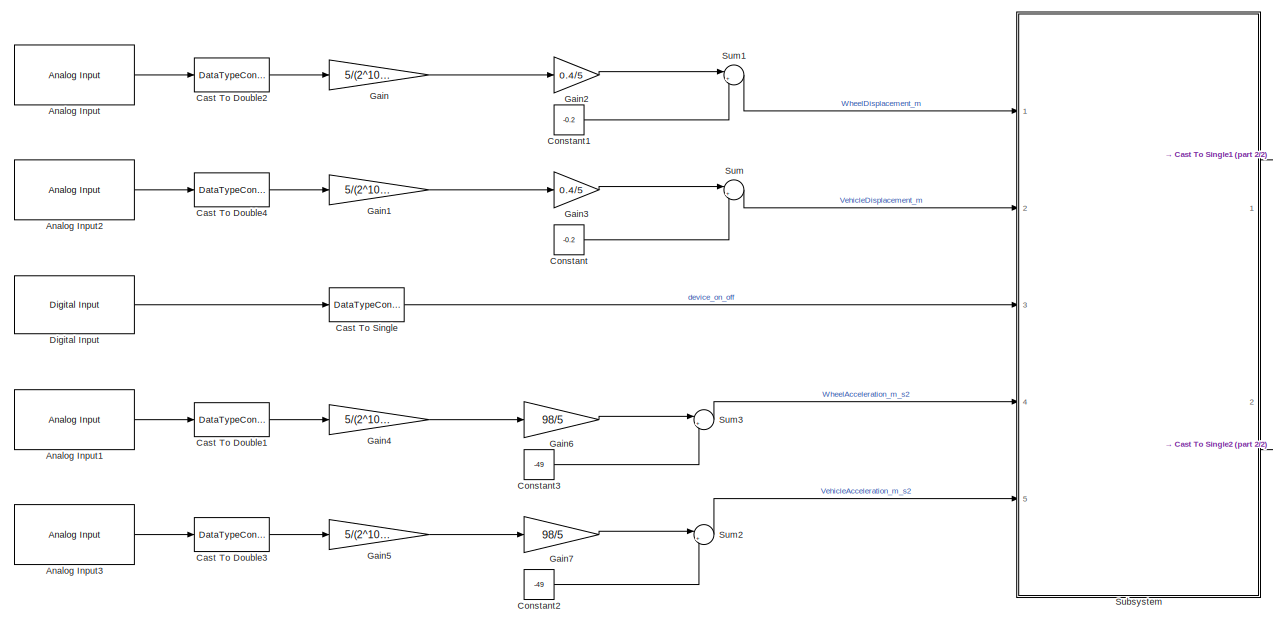
[diagram: root canvas - part 1/2, most of the canvas]
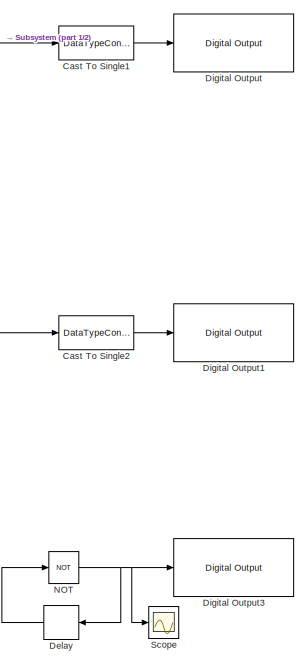
[diagram: root canvas - part 2/2, right side, full height]
MODEL slx_8d690a46111a
KIND model
CONFIG AbsTol = auto
CONFIG EnableMultiTasking = off
CONFIG FixedStep = 1/100
CONFIG MaxStep = auto
CONFIG MinStep = auto
CONFIG RelTol = 1e-3
CONFIG SampleTimeConstraint = Unconstrained
CONFIG SolverName = FixedStepAuto
CONFIG StartTime = 0.0
CONFIG StopTime = inf
BLOCK [Reference] Analog Input  REF=arduinolib/Analog Input
  Ports = [0, 1]
  SourceBlock = arduinolib/Analog Input
  SourceProductBaseCode = ARDUINO
  SourceType = Arduino Analog Input
BLOCK [Reference] Analog Input1  REF=arduinolib/Analog Input
  Ports = [0, 1]
  SourceBlock = arduinolib/Analog Input
  SourceProductBaseCode = ARDUINO
  SourceType = Arduino Analog Input
BLOCK [Reference] Analog Input2  REF=arduinolib/Analog Input
  Ports = [0, 1]
  SourceBlock = arduinolib/Analog Input
  SourceProductBaseCode = ARDUINO
  SourceType = Arduino Analog Input
BLOCK [Reference] Analog Input3  REF=arduinolib/Analog Input
  Ports = [0, 1]
  SourceBlock = arduinolib/Analog Input
  SourceProductBaseCode = ARDUINO
  SourceType = Arduino Analog Input
BLOCK [DataTypeConversion] Cast To Double1
  OutDataTypeStr = double
  RndMeth = Floor
  SaturateOnIntegerOverflow = off
BLOCK [DataTypeConversion] Cast To Double2
  OutDataTypeStr = double
  RndMeth = Floor
  SaturateOnIntegerOverflow = off
BLOCK [DataTypeConversion] Cast To Double3
  OutDataTypeStr = double
  RndMeth = Floor
  SaturateOnIntegerOverflow = off
BLOCK [DataTypeConversion] Cast To Double4
  OutDataTypeStr = double
  RndMeth = Floor
  SaturateOnIntegerOverflow = off
BLOCK [DataTypeConversion] Cast To Single
  OutDataTypeStr = int8
  RndMeth = Floor
  SaturateOnIntegerOverflow = off
BLOCK [DataTypeConversion] Cast To Single1
  OutDataTypeStr = boolean
  RndMeth = Floor
  SaturateOnIntegerOverflow = off
BLOCK [DataTypeConversion] Cast To Single2
  OutDataTypeStr = boolean
  RndMeth = Floor
  SaturateOnIntegerOverflow = off
BLOCK [Constant] Constant
  Value = -0.2
BLOCK [Constant] Constant1
  Value = -0.2
BLOCK [Constant] Constant2
  Value = -49
BLOCK [Constant] Constant3
  Value = -49
BLOCK [Delay] Delay
  DelayLength = 1
  InputPortMap = u0
  NameLocation = top
  Ports = [1, 1]
  SampleTime = 0.5
BLOCK [Reference] Digital Input  REF=arduinolib/Digital Input
  Ports = [0, 1]
  SourceBlock = arduinolib/Digital Input
  SourceProductBaseCode = ARDUINO
  SourceType = Arduino Digital Input
BLOCK [Reference] Digital Output  REF=arduinolib/Digital Output
  Ports = [1]
  SourceBlock = arduinolib/Digital Output
  SourceProductBaseCode = ARDUINO
  SourceType = Arduino Digital Output
BLOCK [Reference] Digital Output1  REF=arduinolib/Digital Output
  Ports = [1]
  SourceBlock = arduinolib/Digital Output
  SourceProductBaseCode = ARDUINO
  SourceType = Arduino Digital Output
BLOCK [Reference] Digital Output3  REF=arduinolib/Digital Output
  Ports = [1]
  SourceBlock = arduinolib/Digital Output
  SourceProductBaseCode = ARDUINO
  SourceType = Arduino Digital Output
BLOCK [Gain] Gain
  Gain = 5/(2^10-1)
BLOCK [Gain] Gain1
  Gain = 5/(2^10-1)
BLOCK [Gain] Gain2
  Gain = 0.4/5
BLOCK [Gain] Gain3
  Gain = 0.4/5
BLOCK [Gain] Gain4
  Gain = 5/(2^10-1)
BLOCK [Gain] Gain5
  Gain = 5/(2^10-1)
BLOCK [Gain] Gain6
  Gain = 98/5
BLOCK [Gain] Gain7
  Gain = 98/5
BLOCK [Logic] NOT
  AllPortsSameDT = off
  IconShape = distinctive
  Operator = NOT
  OutDataTypeStr = boolean
  Ports = [1, 1]
BLOCK [Scope] Scope
  Floating = off
  NumInputPorts = 1
  Ports = [1]
  ScopeSpecificationString = Simulink.scopes.TimeScopeBlockCfg('CurrentConfiguration', extmgr.ConfigurationSet(extmgr.Configuration('Core','General UI',true),extmgr.Configuration('Core','Source UI',true),extmgr.Configuration('Sources','WiredSimulink',true),extmgr.Configuration('Visuals','Time Domain',true,'SerializedDisplays',{struct('MinYLimReal','-0.125','MaxYLimReal','1.125','YLabelReal','','MinYLimMag','0.00000','MaxYLimM...<+1311ch>
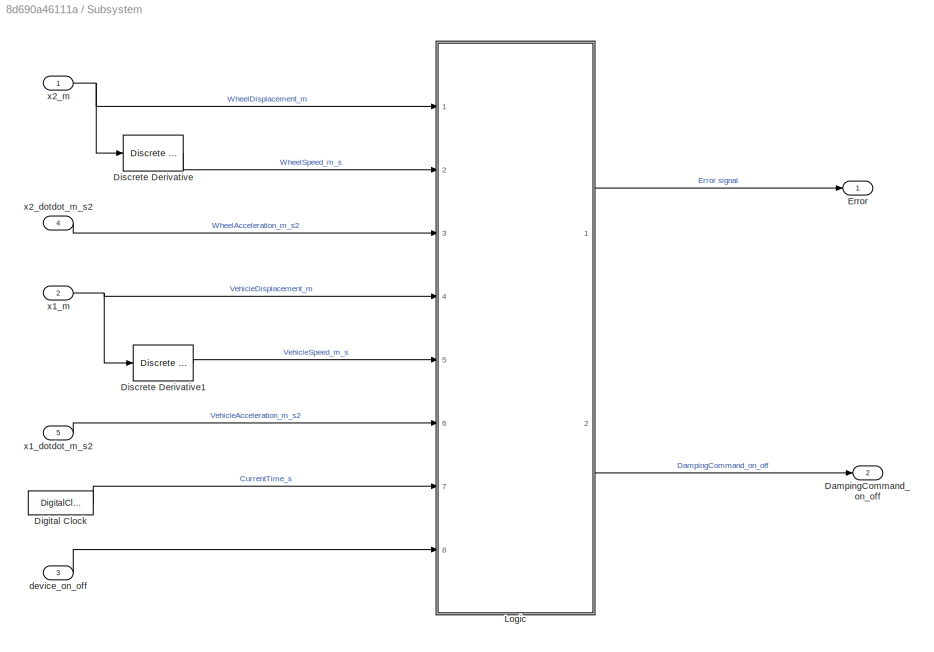
BLOCK [SubSystem] Subsystem
  Ports = [5, 2]
  RequestExecContextInheritance = off
BLOCK [Outport] Subsystem/DampingCommand_on_off
  OutDataTypeStr = int8
  Port = 2
BLOCK [DigitalClock] Subsystem/Digital Clock
  SampleTime = 1/100
BLOCK [Reference] Subsystem/Discrete Derivative  REF=simulink/Discrete/Discrete Derivative
  Ports = [1, 1]
  SourceBlock = simulink/Discrete/Discrete Derivative
  SourceProductBaseCode = SL
  SourceType = Discrete Derivative
BLOCK [Reference] Subsystem/Discrete Derivative1  REF=simulink/Discrete/Discrete Derivative
  Ports = [1, 1]
  SourceBlock = simulink/Discrete/Discrete Derivative
  SourceProductBaseCode = SL
  SourceType = Discrete Derivative
BLOCK [Outport] Subsystem/Error
  OutDataTypeStr = double
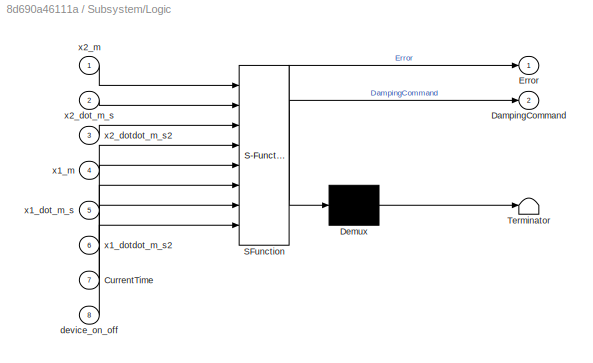
BLOCK [SubSystem] Subsystem/Logic
  ErrorFcn = Stateflow.Translate.translate
  PermitHierarchicalResolution = ExplicitOnly
  Ports = [8, 2]
  RequestExecContextInheritance = off
  SFBlockType = Chart
  TreatAsAtomicUnit = on
BLOCK [Demux] Subsystem/Logic/ Demux 
  Outputs = 1
  Ports = [1, 1]
BLOCK [S-Function] Subsystem/Logic/ SFunction 
  EnableBusSupport = on
  FunctionName = sf_sfun
  PortCounts = [8 3]
  Ports = [8, 3]
  SFcnIsStateOwnerBlock = off
  SFunctionDeploymentMode = off
  Tag = Stateflow S-Function 3
BLOCK [Terminator] Subsystem/Logic/ Terminator 
BLOCK [Inport] Subsystem/Logic/CurrentTime
  Port = 7
BLOCK [Outport] Subsystem/Logic/DampingCommand
  Port = 2
BLOCK [Outport] Subsystem/Logic/Error
BLOCK [Inport] Subsystem/Logic/device_on_off
  Port = 8
BLOCK [Inport] Subsystem/Logic/x1_dot_m_s
  Port = 5
BLOCK [Inport] Subsystem/Logic/x1_dotdot_m_s2
  Port = 6
BLOCK [Inport] Subsystem/Logic/x1_m
  Port = 4
BLOCK [Inport] Subsystem/Logic/x2_dot_m_s
  Port = 2
BLOCK [Inport] Subsystem/Logic/x2_dotdot_m_s2
  Port = 3
BLOCK [Inport] Subsystem/Logic/x2_m
BLOCK [Inport] Subsystem/device_on_off
  Port = 3
BLOCK [Inport] Subsystem/x1_dotdot_m_s2
  OutDataTypeStr = double
  Port = 5
BLOCK [Inport] Subsystem/x1_m
  Port = 2
BLOCK [Inport] Subsystem/x2_dotdot_m_s2
  OutDataTypeStr = double
  Port = 4
BLOCK [Inport] Subsystem/x2_m
  OutDataTypeStr = double
BLOCK [Sum] Sum
  Inputs = |++
  Ports = [2, 1]
BLOCK [Sum] Sum1
  Inputs = |++
  Ports = [2, 1]
BLOCK [Sum] Sum2
  Inputs = |++
  Ports = [2, 1]
BLOCK [Sum] Sum3
  Inputs = |++
  Ports = [2, 1]
LINE Analog Input1:1 -> Cast To Double1:1
LINE Analog Input2:1 -> Cast To Double4:1
LINE Analog Input3:1 -> Cast To Double3:1
LINE Analog Input:1 -> Cast To Double2:1
LINE Cast To Double1:1 -> Gain4:1
LINE Cast To Double2:1 -> Gain:1
LINE Cast To Double3:1 -> Gain5:1
LINE Cast To Double4:1 -> Gain1:1
LINE Cast To Single1:1 -> Digital Output:1
LINE Cast To Single2:1 -> Digital Output1:1
LINE Cast To Single:1 -> Subsystem:3
LINE Constant1:1 -> Sum1:2
LINE Constant2:1 -> Sum2:2
LINE Constant3:1 -> Sum3:2
LINE Constant:1 -> Sum:2
LINE Delay:1 -> NOT:1
LINE Digital Input:1 -> Cast To Single:1
LINE Gain1:1 -> Gain3:1
LINE Gain2:1 -> Sum1:1
LINE Gain3:1 -> Sum:1
LINE Gain4:1 -> Gain6:1
LINE Gain5:1 -> Gain7:1
LINE Gain6:1 -> Sum3:1
LINE Gain7:1 -> Sum2:1
LINE Gain:1 -> Gain2:1
NET NOT:1 -> Delay:1, Digital Output3:1, Scope:1
LINE Subsystem/Digital Clock:1 -> Subsystem/Logic:7
LINE Subsystem/Discrete Derivative1:1 -> Subsystem/Logic:5
LINE Subsystem/Discrete Derivative:1 -> Subsystem/Logic:2
LINE Subsystem/Logic:1 -> Subsystem/Error:1
LINE Subsystem/Logic:2 -> Subsystem/DampingCommand_on_off:1
LINE Subsystem/device_on_off:1 -> Subsystem/Logic:8
LINE Subsystem/x1_dotdot_m_s2:1 -> Subsystem/Logic:6
NET Subsystem/x1_m:1 -> Subsystem/Discrete Derivative1:1, Subsystem/Logic:4
LINE Subsystem/x2_dotdot_m_s2:1 -> Subsystem/Logic:3
NET Subsystem/x2_m:1 -> Subsystem/Discrete Derivative:1, Subsystem/Logic:1
LINE Subsystem:1 -> Cast To Single1:1
LINE Subsystem:2 -> Cast To Single2:1
LINE Sum1:1 -> Subsystem:1
LINE Sum2:1 -> Subsystem:5
LINE Sum3:1 -> Subsystem:4
LINE Sum:1 -> Subsystem:2
note: NET lines group one-source signal fan-out (src -> all destinations, sorted); 1:1 wires keep LINE
CHART Subsystem/Logic states=12 transitions=11
  STATE_LABEL 'Device'
  STATE_LABEL 'DeviceOff\nentry:\nError = 0;\nDampingCommand=0;\n'
  STATE_LABEL 'DeviceOn\nduring:\nDecisionLogic();\n'
  STATE_LABEL 'Logic'
  STATE_LABEL 'ControlLogic'
  STATE_LABEL 'HighDamping\nentry:\nDampingCommand=1;'
  STATE_LABEL 'LowDamping\nentry:\nDampingCommand=0;'
  STATE_LABEL '[DampingStatus == "HiDamping"]'
  STATE_LABEL '[DampingStatus == "LoDamping"]'
  STATE_LABEL '{send(EStop,Warning)}'
  STATE_LABEL '[CheckFaultSystem()]'
  STATE_LABEL 'Warning'
  STATE_LABEL 'Running\n'
  STATE_LABEL 'Stop\nentry:\nError=1;\nDampingCommand=1;\n'
  STATE_LABEL 'EStop'
  STATE_LABEL 'DecisionLogic'
  STATE_LABEL 'SCRIPT:\nfunction DecisionLogic\n\naVarTruthTableCondition_1 = false;\naVarTruthTableCondition_2 = false;\n\n\n% High damping required\n\naVarTruthTableCondition_1 = logical((x1_dot_m_s-x2_dot_m_s)*x1_dot_m_s>=0 && Error<1);\n\n% Low damping required\n\naVarTruthTableCondition_2 = logical((x1_dot_m_s-x2_dot_m_s)*x1_dot_m_s<0 && Error<1);\n\nif (aVarTruthTableCondition_1)\n    aFcnTruthTableAction_1();\nelseif (aVa...<+334ch>'
  STATE_LABEL 'flag = CheckFaultSystem'
  STATE_LABEL 'SCRIPT:\nfunction flag = CheckFaultSystem\npersistent tol old_x1_dotdot_m_s2 old_x1_m old_x2_m old_x2_dotdot_m_s2 timeChange Error_flag\n\nif isempty(tol)\n    tol = 1e-8;\nend\n\nif isempty(Error_flag)\n    Error_flag = 0;\nend\n\nif isempty(old_x2_dotdot_m_s2)\n    old_x2_dotdot_m_s2 = x2_dotdot_m_s2;\nend\n\nif isempty(old_x2_m)\n    old_x2_m = x2_m;\nend\n\nif isempty(old_x1_dotdot_m_s2)\n    old_x1_dotdot_m_s2 = ...<+644ch>'
  STATE_LABEL '[device_on_off==0]'
  STATE_LABEL '[device_on_off==1]'
  STATE_LABEL 'DeviceOff\nentry:\nError = 0;\nDampingCommand=0;\n'
  STATE_LABEL 'DeviceOn\nduring:\nDecisionLogic();\n'
  STATE_LABEL 'Logic'
  STATE_LABEL 'ControlLogic'
  STATE_LABEL 'HighDamping\nentry:\nDampingCommand=1;'
  STATE_LABEL 'LowDamping\nentry:\nDampingCommand=0;'
  STATE_LABEL '[DampingStatus == "HiDamping"]'
  STATE_LABEL '[DampingStatus == "LoDamping"]'
  STATE_LABEL '{send(EStop,Warning)}'
  STATE_LABEL '[CheckFaultSystem()]'
  STATE_LABEL 'Warning'
  STATE_LABEL 'Running\n'
  STATE_LABEL 'Stop\nentry:\nError=1;\nDampingCommand=1;\n'
  STATE_LABEL 'EStop'
  STATE_LABEL 'DecisionLogic'
  STATE_LABEL 'SCRIPT:\nfunction DecisionLogic\n\naVarTruthTableCondition_1 = false;\naVarTruthTableCondition_2 = false;\n\n\n% High damping required\n\naVarTruthTableCondition_1 = logical((x1_dot_m_s-x2_dot_m_s)*x1_dot_m_s>=0 && Error<1);\n\n% Low damping required\n\naVarTruthTableCondition_2 = logical((x1_dot_m_s-x2_dot_m_s)*x1_dot_m_s<0 && Error<1);\n\nif (aVarTruthTableCondition_1)\n    aFcnTruthTableAction_1();\nelseif (aVa...<+334ch>'
  STATE_LABEL 'flag = CheckFaultSystem'
  STATE_LABEL 'SCRIPT:\nfunction flag = CheckFaultSystem\npersistent tol old_x1_dotdot_m_s2 old_x1_m old_x2_m old_x2_dotdot_m_s2 timeChange Error_flag\n\nif isempty(tol)\n    tol = 1e-8;\nend\n\nif isempty(Error_flag)\n    Error_flag = 0;\nend\n\nif isempty(old_x2_dotdot_m_s2)\n    old_x2_dotdot_m_s2 = x2_dotdot_m_s2;\nend\n\nif isempty(old_x2_m)\n    old_x2_m = x2_m;\nend\n\nif isempty(old_x1_dotdot_m_s2)\n    old_x1_dotdot_m_s2 = ...<+644ch>'
  STATE_LABEL 'Logic'
CHART  states=0 transitions=0
